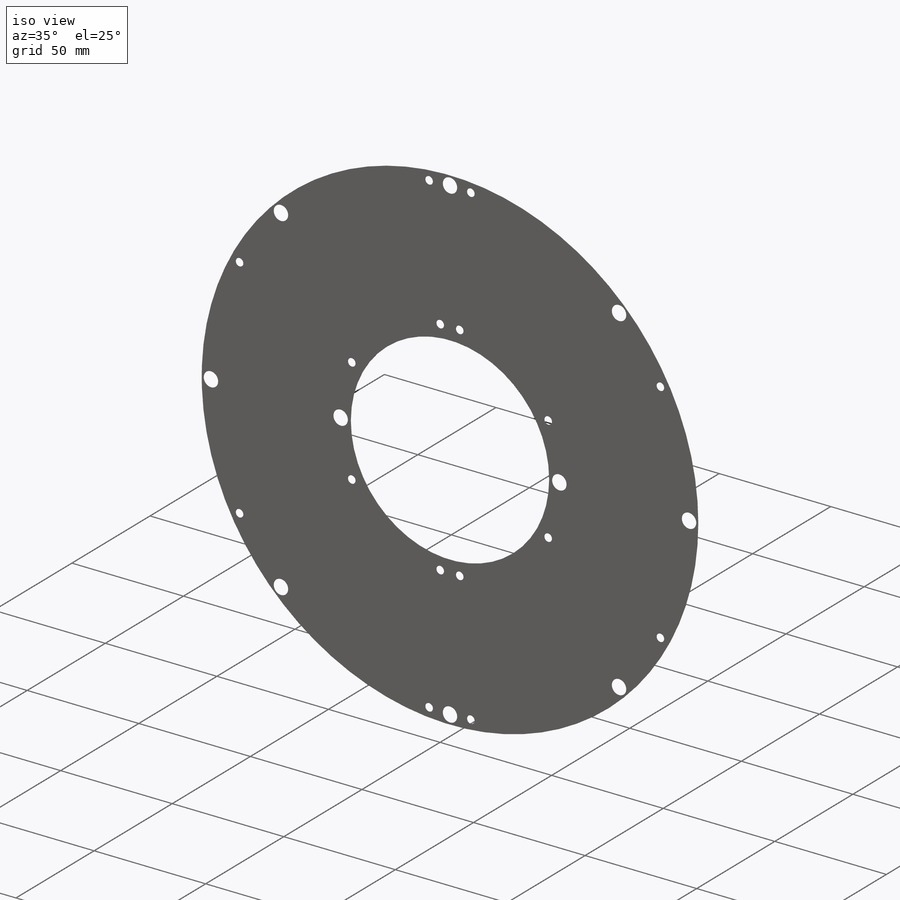
[diagram: iso view]
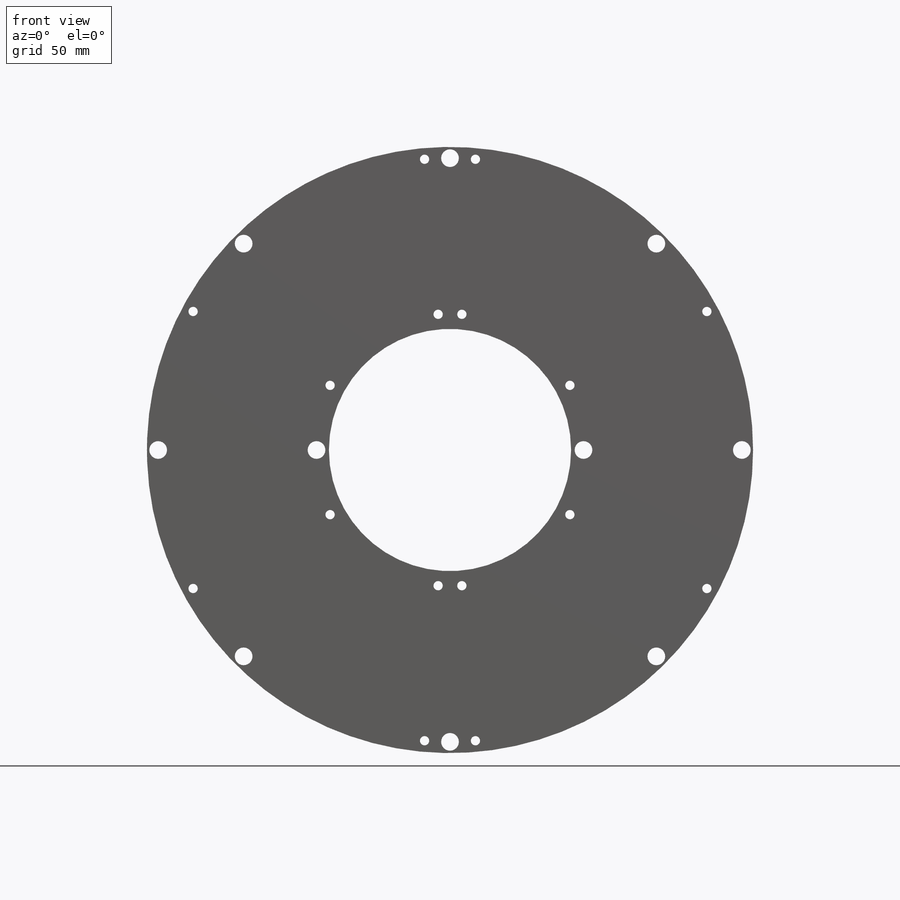
[diagram: front view]
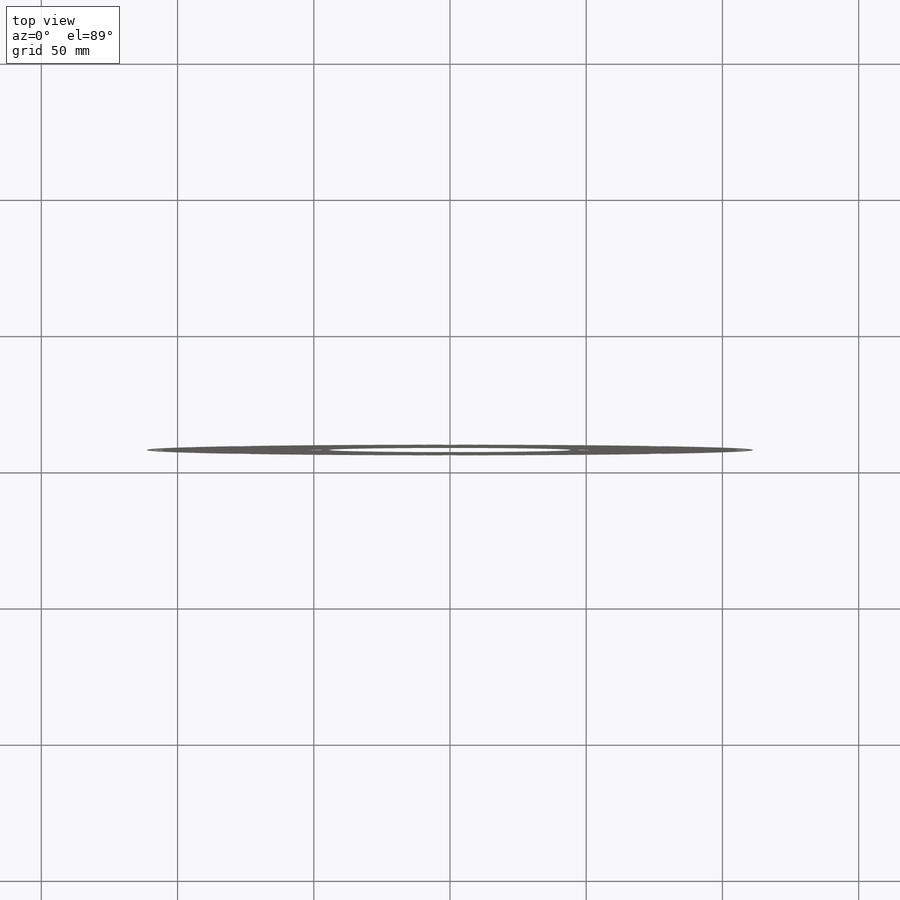
[diagram: top view]
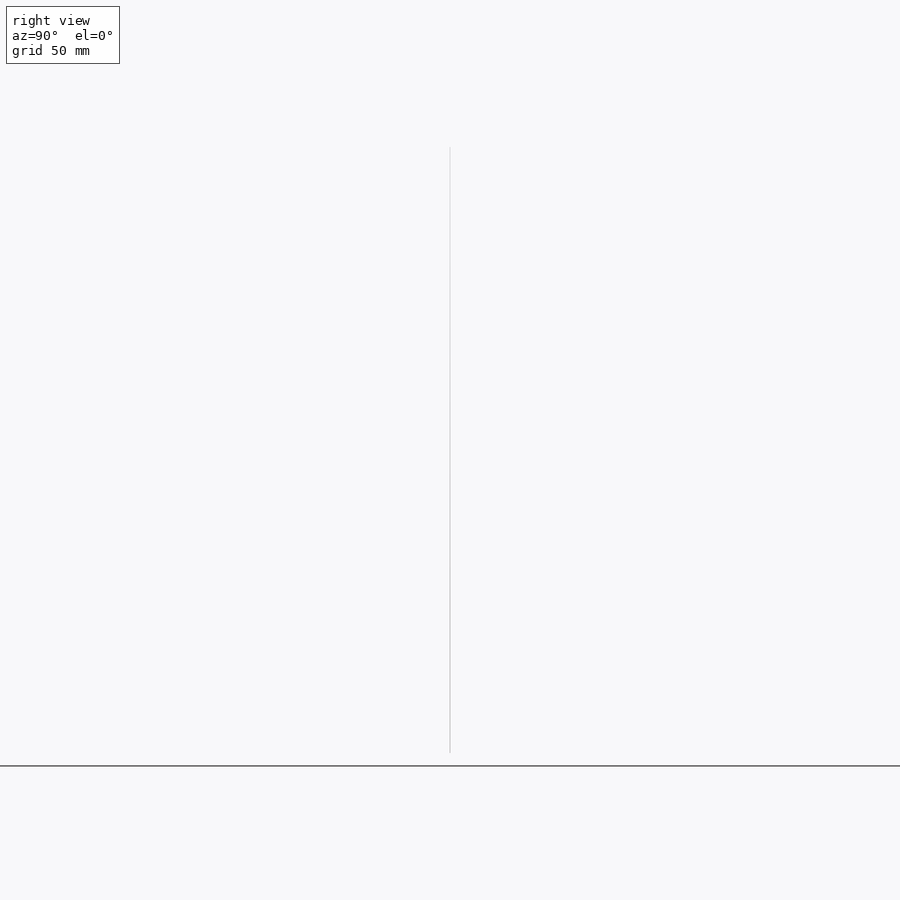
[diagram: right view]
SOLIDWORKS PART (.sldprt)
format: sldprt  version: not decoded by parser v0  size: 268,800 bytes
history: native  units: mm
features: sketch x5, hole x2, material x1, extrude x1, mirror x1 + 1 further entry (+11 scaffold rows collapsed)
feature tree (22):
  scaffold x11  (default folders/planes/origin — collapsed)
  material  "Kapton"
  sketch  "Sketch1"
  extrude  "Boss-Extrude1"  Depth=0.05mm
  hole  "M3 Clearance Hole1"  Diameter=3.4mm Depth=0.05mm
  sketch  "Sketch3"
  sketch  "Sketch4"  dims[hole-wizard template sketch: 60 standard entries collapsed; hole parameters kept: c18.Thru Hole Depth=0.05mm]
  "Sketch-Pattern1"
  mirror  "Mirror1"
  hole  "CBORE for M3 SHCS1"  Diameter=3.6mm Depth=0.05mm
  sketch  "Sketch6"
  sketch  "Sketch7"  dims[hole-wizard template sketch: 41 standard entries collapsed; hole parameters kept: c12.Thru Hole Dia.=3.6mm c12.Thru Hole Depth=0.05mm c12.C'Bore Dia.=6.5mm c12.C'Bore Depth=3.0mm]
decode coverage: 5 of 9 modeling features carry decoded parameters; 1 rows unclassified (native names shown)
note: ~ marks probable driven/reference dimensions
note: suppression state not decoded; provenance and decode notes live in map.json
